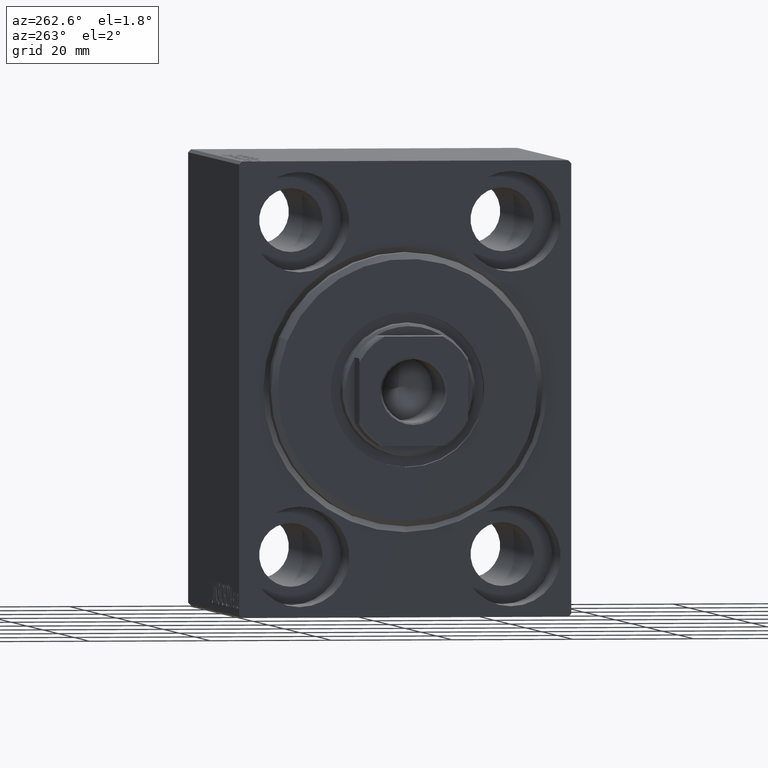
[diagram: clean part render]
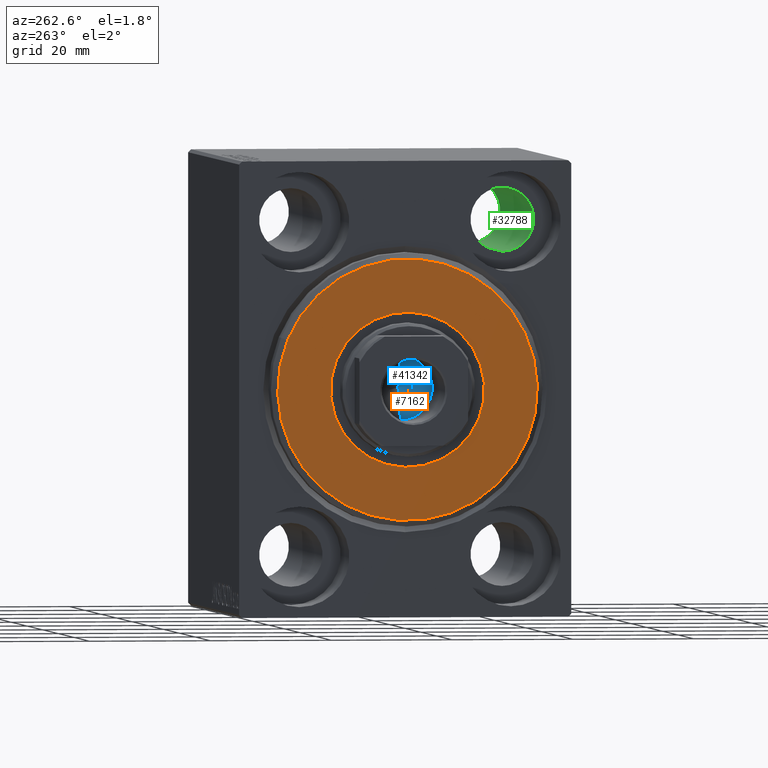
[diagram: same view with three faces highlighted in distinct colors, each labeled with its STEP entity id]
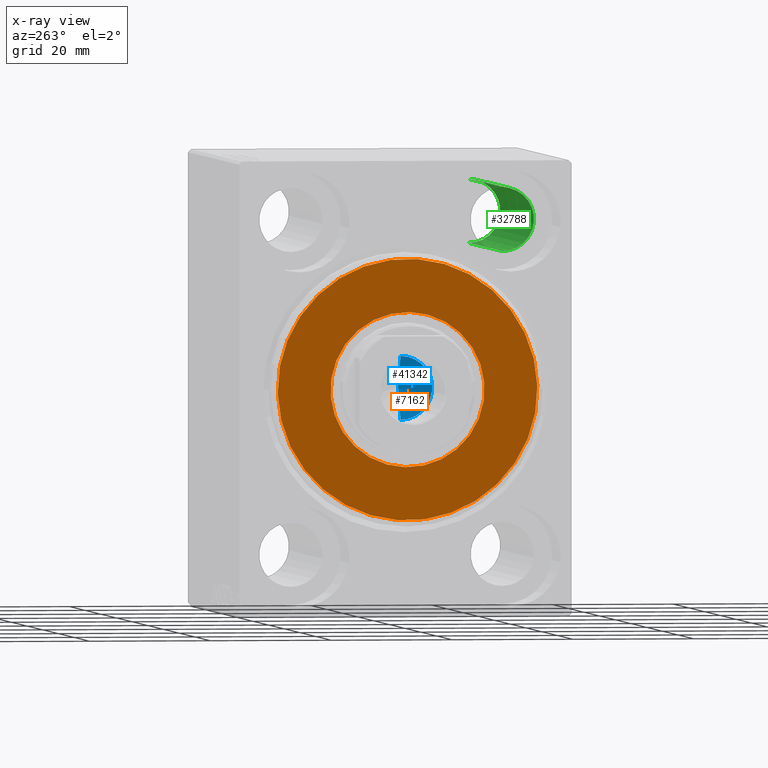
[diagram: x-ray of the same camera — body ghosted, the three highlighted faces saturated]
A machine part, auxiliary view with three faces highlighted in distinct colors.
The next image is the same camera in x-ray (body ghosted, the three faces saturated) — at least one of them is partly hidden behind the body in this view.
Their STEP definitions:

[orange] entity #7162 — the highlighted planar face has unit normal (-1, 0, 0).
#1606 = ORIENTED_EDGE ( 'NONE', *, *, #14072, .T. ) ;
#5444 = AXIS2_PLACEMENT_3D ( 'NONE', #37360, #10700, #24147 ) ;
#5459 = DIRECTION ( 'NONE',  ( 1.000000000000000000, -0.000000000000000000, 0.000000000000000000 ) ) ;
#6085 = CARTESIAN_POINT ( 'NONE',  ( 3.000000000000000000, 0.000000000000000000, 0.000000000000000000 ) ) ;
#7162 = ADVANCED_FACE ( 'NONE', ( #40454, #37571 ), #23934, .T. ) ;
#8067 = DIRECTION ( 'NONE',  ( 0.000000000000000000, 0.000000000000000000, -1.000000000000000000 ) ) ;
#10620 = ORIENTED_EDGE ( 'NONE', *, *, #34592, .T. ) ;
#10700 = DIRECTION ( 'NONE',  ( 1.000000000000000000, -0.000000000000000000, 0.000000000000000000 ) ) ;
#11374 = DIRECTION ( 'NONE',  ( -1.000000000000000000, 0.000000000000000000, -0.000000000000000000 ) ) ;
#11861 = CARTESIAN_POINT ( 'NONE',  ( 3.000000000000000000, 0.000000000000000000, 0.000000000000000000 ) ) ;
#12684 = CIRCLE ( 'NONE', #27485, 12.75000000000000000 ) ;
#12891 = CARTESIAN_POINT ( 'NONE',  ( 3.000000000000000000, 0.000000000000000000, 21.50000000000000355 ) ) ;
#13417 = VERTEX_POINT ( 'NONE', #21858 ) ;
#14072 = EDGE_CURVE ( 'NONE', #18404, #23193, #42915, .T. ) ;
#16614 = DIRECTION ( 'NONE',  ( -1.000000000000000000, 0.000000000000000000, -0.000000000000000000 ) ) ;
#18404 = VERTEX_POINT ( 'NONE', #31702 ) ;
#18682 = EDGE_CURVE ( 'NONE', #13417, #26849, #12684, .T. ) ;
#20343 = CARTESIAN_POINT ( 'NONE',  ( 3.000000000000000000, 0.000000000000000000, 0.000000000000000000 ) ) ;
#21858 = CARTESIAN_POINT ( 'NONE',  ( 3.000000000000000000, 1.561424668912874914E-15, -12.75000000000000000 ) ) ;
#22592 = CIRCLE ( 'NONE', #28226, 12.75000000000000000 ) ;
#23193 = VERTEX_POINT ( 'NONE', #12891 ) ;
#23934 = PLANE ( 'NONE',  #5444 ) ;
#24147 = DIRECTION ( 'NONE',  ( 0.000000000000000000, 0.000000000000000000, -1.000000000000000000 ) ) ;
#25560 = CARTESIAN_POINT ( 'NONE',  ( 3.000000000000000000, 0.000000000000000000, 12.75000000000000000 ) ) ;
#26055 = AXIS2_PLACEMENT_3D ( 'NONE', #6085, #32976, #26370 ) ;
#26370 = DIRECTION ( 'NONE',  ( 0.000000000000000000, 0.000000000000000000, -1.000000000000000000 ) ) ;
#26849 = VERTEX_POINT ( 'NONE', #25560 ) ;
#26964 = DIRECTION ( 'NONE',  ( 0.000000000000000000, 0.000000000000000000, -1.000000000000000000 ) ) ;
#27485 = AXIS2_PLACEMENT_3D ( 'NONE', #41561, #11374, #8067 ) ;
#28226 = AXIS2_PLACEMENT_3D ( 'NONE', #20343, #16614, #26964 ) ;
#30758 = EDGE_LOOP ( 'NONE', ( #10620, #1606 ) ) ;
#31702 = CARTESIAN_POINT ( 'NONE',  ( 3.000000000000000000, 2.694222958124177598E-15, -21.50000000000000355 ) ) ;
#32976 = DIRECTION ( 'NONE',  ( 1.000000000000000000, -0.000000000000000000, 0.000000000000000000 ) ) ;
#34592 = EDGE_CURVE ( 'NONE', #23193, #18404, #36591, .T. ) ;
#35876 = ORIENTED_EDGE ( 'NONE', *, *, #41448, .T. ) ;
#36539 = ORIENTED_EDGE ( 'NONE', *, *, #18682, .T. ) ;
#36591 = CIRCLE ( 'NONE', #26055, 21.50000000000000355 ) ;
#37360 = CARTESIAN_POINT ( 'NONE',  ( 3.000000000000000000, 0.000000000000000000, 0.000000000000000000 ) ) ;
#37571 = FACE_BOUND ( 'NONE', #40902, .T. ) ;
#40454 = FACE_OUTER_BOUND ( 'NONE', #30758, .T. ) ;
#40902 = EDGE_LOOP ( 'NONE', ( #35876, #36539 ) ) ;
#41448 = EDGE_CURVE ( 'NONE', #26849, #13417, #22592, .T. ) ;
#41561 = CARTESIAN_POINT ( 'NONE',  ( 3.000000000000000000, 0.000000000000000000, 0.000000000000000000 ) ) ;
#41833 = DIRECTION ( 'NONE',  ( 0.000000000000000000, 0.000000000000000000, -1.000000000000000000 ) ) ;
#42218 = AXIS2_PLACEMENT_3D ( 'NONE', #11861, #5459, #41833 ) ;
#42915 = CIRCLE ( 'NONE', #42218, 21.50000000000000355 ) ;

[blue] entity #41342 — the highlighted conical surface has half-angle 59 deg.
#2266 = LINE ( 'NONE', #5349, #38026 ) ;
#2341 = VERTEX_POINT ( 'NONE', #20892 ) ;
#5349 = CARTESIAN_POINT ( 'NONE',  ( 5.249999999999995559, 0.000000000000000000, 44.99999999999999289 ) ) ;
#7652 = CARTESIAN_POINT ( 'NONE',  ( -4.624611670276745537E-15, 0.000000000000000000, 41.84548175010530002 ) ) ;
#7687 = AXIS2_PLACEMENT_3D ( 'NONE', #27004, #24335, #36905 ) ;
#9362 = CARTESIAN_POINT ( 'NONE',  ( 5.249999999999995559, 0.000000000000000000, 44.99999999999999289 ) ) ;
#9539 = DIRECTION ( 'NONE',  ( -0.000000000000000000, -0.000000000000000000, 1.000000000000000000 ) ) ;
#9928 = AXIS2_PLACEMENT_3D ( 'NONE', #40392, #9539, #12858 ) ;
#11969 = EDGE_CURVE ( 'NONE', #2341, #28026, #42839, .T. ) ;
#12858 = DIRECTION ( 'NONE',  ( 1.000000000000000000, 0.000000000000000000, 0.000000000000000000 ) ) ;
#12909 = CARTESIAN_POINT ( 'NONE',  ( -5.249999999999995559, 6.429395695523600208E-16, 44.99999999999999289 ) ) ;
#13833 = ORIENTED_EDGE ( 'NONE', *, *, #39192, .F. ) ;
#20892 = CARTESIAN_POINT ( 'NONE',  ( -5.249999999999995559, 6.429395695523600208E-16, 44.99999999999999289 ) ) ;
#22336 = ORIENTED_EDGE ( 'NONE', *, *, #11969, .T. ) ;
#24335 = DIRECTION ( 'NONE',  ( -0.000000000000000000, -0.000000000000000000, 1.000000000000000000 ) ) ;
#24982 = DIRECTION ( 'NONE',  ( 0.8571673007021121116, 0.000000000000000000, 0.5150380749100544886 ) ) ;
#25400 = CONICAL_SURFACE ( 'NONE', #9928, 5.249999999999995559, 1.029744258676654090 ) ;
#26389 = VECTOR ( 'NONE', #30083, 1000.000000000000000 ) ;
#27004 = CARTESIAN_POINT ( 'NONE',  ( 0.000000000000000000, 0.000000000000000000, 44.99999999999999289 ) ) ;
#28026 = VERTEX_POINT ( 'NONE', #9362 ) ;
#28776 = EDGE_CURVE ( 'NONE', #42982, #2341, #40436, .T. ) ;
#30083 = DIRECTION ( 'NONE',  ( -0.8571673007021121116, 1.049727191138618449E-16, 0.5150380749100544886 ) ) ;
#30685 = FACE_OUTER_BOUND ( 'NONE', #34216, .T. ) ;
#34216 = EDGE_LOOP ( 'NONE', ( #13833, #38053, #22336 ) ) ;
#36905 = DIRECTION ( 'NONE',  ( 1.000000000000000000, 0.000000000000000000, 0.000000000000000000 ) ) ;
#38026 = VECTOR ( 'NONE', #24982, 1000.000000000000000 ) ;
#38053 = ORIENTED_EDGE ( 'NONE', *, *, #28776, .T. ) ;
#39192 = EDGE_CURVE ( 'NONE', #42982, #28026, #2266, .T. ) ;
#40392 = CARTESIAN_POINT ( 'NONE',  ( 0.000000000000000000, 0.000000000000000000, 44.99999999999999289 ) ) ;
#40436 = LINE ( 'NONE', #12909, #26389 ) ;
#41342 = ADVANCED_FACE ( 'NONE', ( #30685 ), #25400, .F. ) ;
#42839 = CIRCLE ( 'NONE', #7687, 5.249999999999995559 ) ;
#42982 = VERTEX_POINT ( 'NONE', #7652 ) ;

[green] entity #32788 — the highlighted cylindrical surface (edge-blend (fillet) strip) has radius 5.25 mm, axis along (-1, -0, -0).
#156 = VERTEX_POINT ( 'NONE', #14855 ) ;
#177 = EDGE_CURVE ( 'NONE', #11818, #156, #41878, .T. ) ;
#928 = VERTEX_POINT ( 'NONE', #9715 ) ;
#1359 = FACE_OUTER_BOUND ( 'NONE', #10900, .T. ) ;
#2263 = DIRECTION ( 'NONE',  ( 0.000000000000000000, 0.000000000000000000, 1.000000000000000000 ) ) ;
#5682 = EDGE_CURVE ( 'NONE', #928, #7201, #16002, .T. ) ;
#6964 = VECTOR ( 'NONE', #17451, 1000.000000000000000 ) ;
#7201 = VERTEX_POINT ( 'NONE', #21271 ) ;
#7306 = CARTESIAN_POINT ( 'NONE',  ( 65.00000000000000000, -17.49999999999999645, 22.25000000000000000 ) ) ;
#9715 = CARTESIAN_POINT ( 'NONE',  ( 54.00000000000000711, -17.49999999999999645, 22.25000000000000000 ) ) ;
#10801 = CARTESIAN_POINT ( 'NONE',  ( 65.00000000000000000, -17.49999999999999645, 32.74999999999999289 ) ) ;
#10900 = EDGE_LOOP ( 'NONE', ( #37353, #24783, #39483, #12964 ) ) ;
#11317 = CARTESIAN_POINT ( 'NONE',  ( 10.99999999999999645, -17.49999999999999645, 27.49999999999999645 ) ) ;
#11818 = VERTEX_POINT ( 'NONE', #18651 ) ;
#12118 = VECTOR ( 'NONE', #24249, 1000.000000000000000 ) ;
#12964 = ORIENTED_EDGE ( 'NONE', *, *, #24967, .F. ) ;
#14584 = AXIS2_PLACEMENT_3D ( 'NONE', #32701, #32252, #35566 ) ;
#14855 = CARTESIAN_POINT ( 'NONE',  ( 10.99999999999999645, -17.49999999999999645, 32.74999999999999289 ) ) ;
#16002 = CIRCLE ( 'NONE', #14584, 5.249999999999997335 ) ;
#17220 = LINE ( 'NONE', #10801, #12118 ) ;
#17451 = DIRECTION ( 'NONE',  ( -1.000000000000000000, -0.000000000000000000, -0.000000000000000000 ) ) ;
#18651 = CARTESIAN_POINT ( 'NONE',  ( 10.99999999999999645, -17.49999999999999645, 22.25000000000000000 ) ) ;
#21271 = CARTESIAN_POINT ( 'NONE',  ( 54.00000000000000711, -17.49999999999999645, 32.74999999999999289 ) ) ;
#21639 = DIRECTION ( 'NONE',  ( 0.000000000000000000, 0.000000000000000000, 1.000000000000000000 ) ) ;
#24249 = DIRECTION ( 'NONE',  ( -1.000000000000000000, -0.000000000000000000, -0.000000000000000000 ) ) ;
#24783 = ORIENTED_EDGE ( 'NONE', *, *, #30389, .T. ) ;
#24967 = EDGE_CURVE ( 'NONE', #7201, #156, #17220, .T. ) ;
#24980 = DIRECTION ( 'NONE',  ( -1.000000000000000000, 0.000000000000000000, 0.000000000000000000 ) ) ;
#27998 = LINE ( 'NONE', #7306, #6964 ) ;
#30389 = EDGE_CURVE ( 'NONE', #928, #11818, #27998, .T. ) ;
#30926 = AXIS2_PLACEMENT_3D ( 'NONE', #34214, #41043, #21639 ) ;
#32035 = AXIS2_PLACEMENT_3D ( 'NONE', #11317, #24980, #2263 ) ;
#32252 = DIRECTION ( 'NONE',  ( -1.000000000000000000, -0.000000000000000000, -0.000000000000000000 ) ) ;
#32701 = CARTESIAN_POINT ( 'NONE',  ( 54.00000000000000711, -17.49999999999999645, 27.49999999999999645 ) ) ;
#32788 = ADVANCED_FACE ( 'NONE', ( #1359 ), #41902, .F. ) ;
#34214 = CARTESIAN_POINT ( 'NONE',  ( 65.00000000000000000, -17.49999999999999645, 27.49999999999999645 ) ) ;
#35566 = DIRECTION ( 'NONE',  ( 0.000000000000000000, 0.000000000000000000, -1.000000000000000000 ) ) ;
#37353 = ORIENTED_EDGE ( 'NONE', *, *, #5682, .F. ) ;
#39483 = ORIENTED_EDGE ( 'NONE', *, *, #177, .T. ) ;
#41043 = DIRECTION ( 'NONE',  ( -1.000000000000000000, -0.000000000000000000, -0.000000000000000000 ) ) ;
#41878 = CIRCLE ( 'NONE', #32035, 5.249999999999997335 ) ;
#41902 = CYLINDRICAL_SURFACE ( 'NONE', #30926, 5.249999999999997335 ) ;